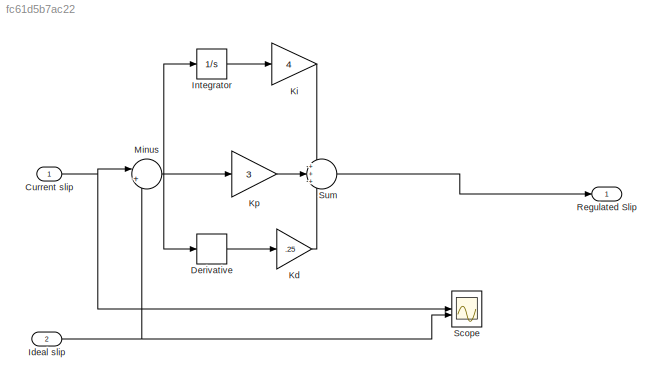
MODEL slx_fc61d5b7ac22
KIND model
CONFIG AbsTol = auto
CONFIG EnableMultiTasking = off
CONFIG FixedStep = auto
CONFIG MaxStep = auto
CONFIG MinStep = auto
CONFIG RelTol = 1e-3
CONFIG SampleTimeConstraint = Unconstrained
CONFIG SolverName = VariableStepAuto
CONFIG StartTime = 0.0
CONFIG StopTime = 10.0
BLOCK [Inport] Current slip 
BLOCK [Derivative] Derivative
BLOCK [Inport] Ideal slip
  Port = 2
BLOCK [Integrator] Integrator
BLOCK [Gain] Kd
  Gain = .25
BLOCK [Gain] Ki
  Gain = 4
BLOCK [Gain] Kp
  Gain = 3
BLOCK [Sum] Minus
  Inputs = |+-
BLOCK [Outport] Regulated Slip
BLOCK [Scope] Scope
  Floating = off
  NumInputPorts = 2
  ScopeSpecificationString = Simulink.scopes.TimeScopeBlockCfg('CurrentConfiguration', extmgr.ConfigurationSet(extmgr.Configuration('Core','General UI',true),extmgr.Configuration('Core','Source UI',true),extmgr.Configuration('Sources','WiredSimulink',true),extmgr.Configuration('Visuals','Time Domain',true,'SerializedDisplays',{struct('MinYLimReal','0.02561','MaxYLimReal','0.7499','YLabelReal','','MinYLimMag','0.02561','MaxYLi...<+1388ch>
BLOCK [Sum] Sum
  Inputs = +++
NET Current slip :1 -> Minus:1, Scope:1
LINE Derivative:1 -> Kd:1
NET Ideal slip:1 -> Minus:2, Scope:2
LINE Integrator:1 -> Ki:1
LINE Kd:1 -> Sum:3
LINE Ki:1 -> Sum:1
LINE Kp:1 -> Sum:2
NET Minus:1 -> Derivative:1, Integrator:1, Kp:1
LINE Sum:1 -> Regulated Slip:1
note: NET lines group one-source signal fan-out (src -> all destinations, sorted); 1:1 wires keep LINE
